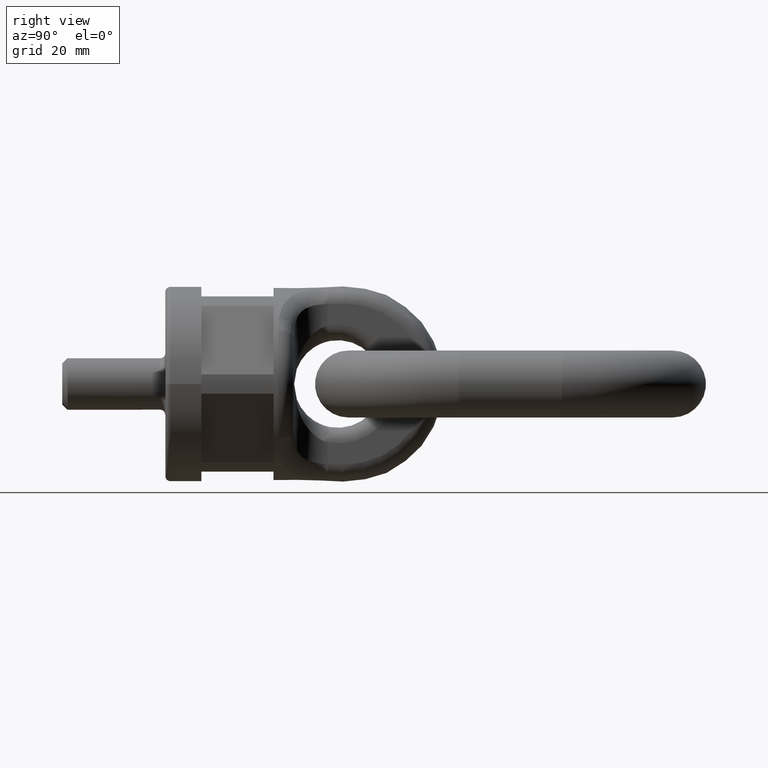
[diagram: clean part render]
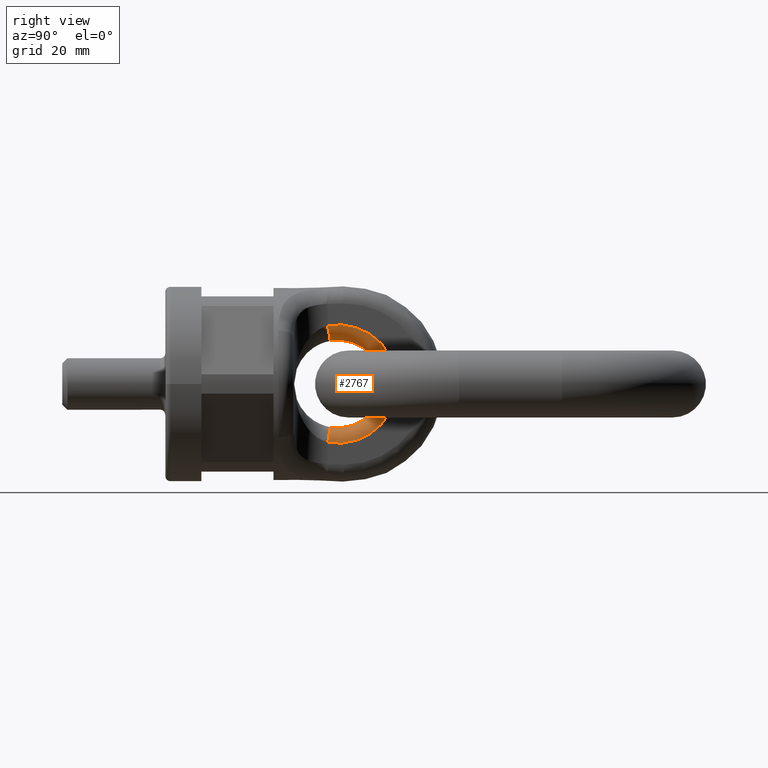
[diagram: same view with one face highlighted and labeled with its STEP entity id]
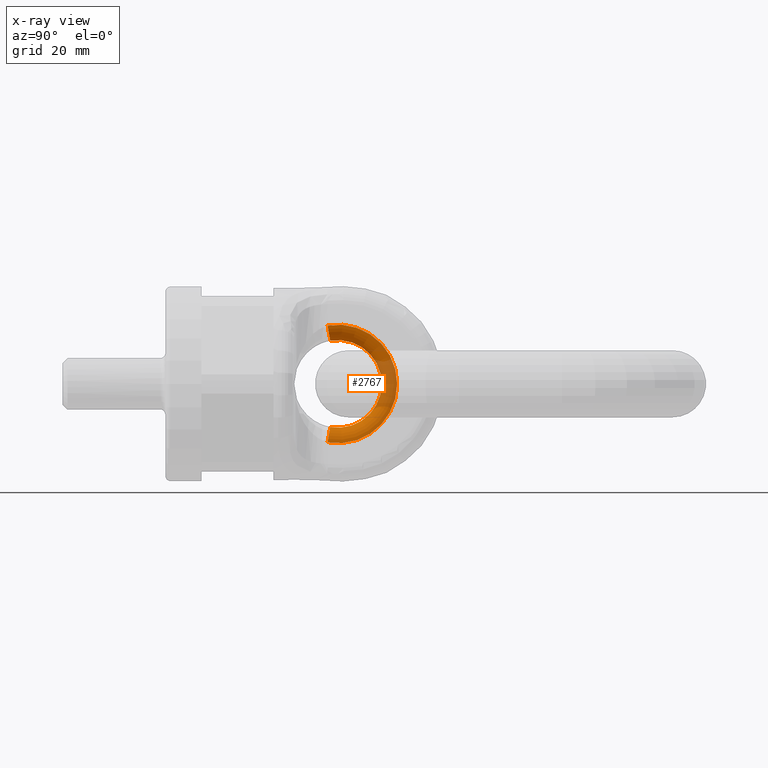
[diagram: x-ray of the same camera — body ghosted, the highlighted face saturated]
A machine part, right view. The second image highlights one B-rep face of the part: STEP entity #2767.
The next image is the same camera in x-ray: the body ghosted, the highlighted face saturated — about 27% of this face is hidden behind the body in this view.
In plain terms, the highlighted toroidal blend (fillet) surface has major radius 11.5 mm and minor (blend) radius 3 mm.
Its self-contained STEP definition (entity closure, byte-faithful):
#1792=TOROIDAL_SURFACE('',#5720,11.5,3.);
#1911=FACE_OUTER_BOUND('',#3211,.T.);
#2767=ADVANCED_FACE('',(#1911),#1792,.T.);
#3211=EDGE_LOOP('',(#3983,#3984,#3985,#3986));
#3983=ORIENTED_EDGE('',*,*,#5259,.T.);
#3984=ORIENTED_EDGE('',*,*,#5001,.F.);
#3985=ORIENTED_EDGE('',*,*,#5260,.F.);
#3986=ORIENTED_EDGE('',*,*,#5074,.F.);
#4591=VERTEX_POINT('',#6782);
#4592=VERTEX_POINT('',#6784);
#4658=VERTEX_POINT('',#7094);
#4659=VERTEX_POINT('',#7095);
#5001=EDGE_CURVE('',#4591,#4592,#5551,.T.);
#5074=EDGE_CURVE('',#4658,#4659,#5561,.T.);
#5259=EDGE_CURVE('',#4658,#4592,#5572,.T.);
#5260=EDGE_CURVE('',#4659,#4591,#5573,.T.);
#5551=CIRCLE('',#5639,11.5);
#5561=CIRCLE('',#5656,8.5);
#5572=CIRCLE('',#5718,3.);
#5573=CIRCLE('',#5719,3.);
#5639=AXIS2_PLACEMENT_3D('',#6783,#5920,#5921);
#5656=AXIS2_PLACEMENT_3D('',#7093,#5983,#5984);
#5718=AXIS2_PLACEMENT_3D('',#8196,#6233,#6234);
#5719=AXIS2_PLACEMENT_3D('',#8221,#6235,#6236);
#5720=AXIS2_PLACEMENT_3D('',#8222,#6237,#6238);
#5920=DIRECTION('',(-1.,3.58908305374512E-16,0.));
#5921=DIRECTION('',(3.77113799125393E-16,1.,0.));
#5983=DIRECTION('',(1.,-3.58908305374512E-16,0.));
#5984=DIRECTION('',(3.57148950936401E-16,1.,0.));
#6233=DIRECTION('',(0.,0.984761013296185,-0.17391304347826));
#6234=DIRECTION('',(0.,0.17391304347826,0.984761013296185));
#6235=DIRECTION('',(-1.00563679766771E-16,-0.984761013296185,-0.17391304347826));
#6236=DIRECTION('',(0.,0.17391304347826,-0.984761013296185));
#6237=DIRECTION('',(1.,-3.58908305374512E-16,0.));
#6238=DIRECTION('',(3.58908305374512E-16,1.,0.));
#6782=CARTESIAN_POINT('',(6.5,31.5,11.3247516529061));
#6783=CARTESIAN_POINT('',(6.5,33.5,0.));
#6784=CARTESIAN_POINT('',(6.5,31.5,-11.3247516529061));
#7093=CARTESIAN_POINT('',(3.5,33.5,0.));
#7094=CARTESIAN_POINT('',(3.5,32.0217391304348,-8.37046861301757));
#7095=CARTESIAN_POINT('',(3.5,32.0217391304348,8.37046861301757));
#8196=CARTESIAN_POINT('',(3.5,31.5,-11.3247516529061));
#8221=CARTESIAN_POINT('',(3.5,31.5,11.3247516529061));
#8222=CARTESIAN_POINT('',(3.5,33.5,0.));